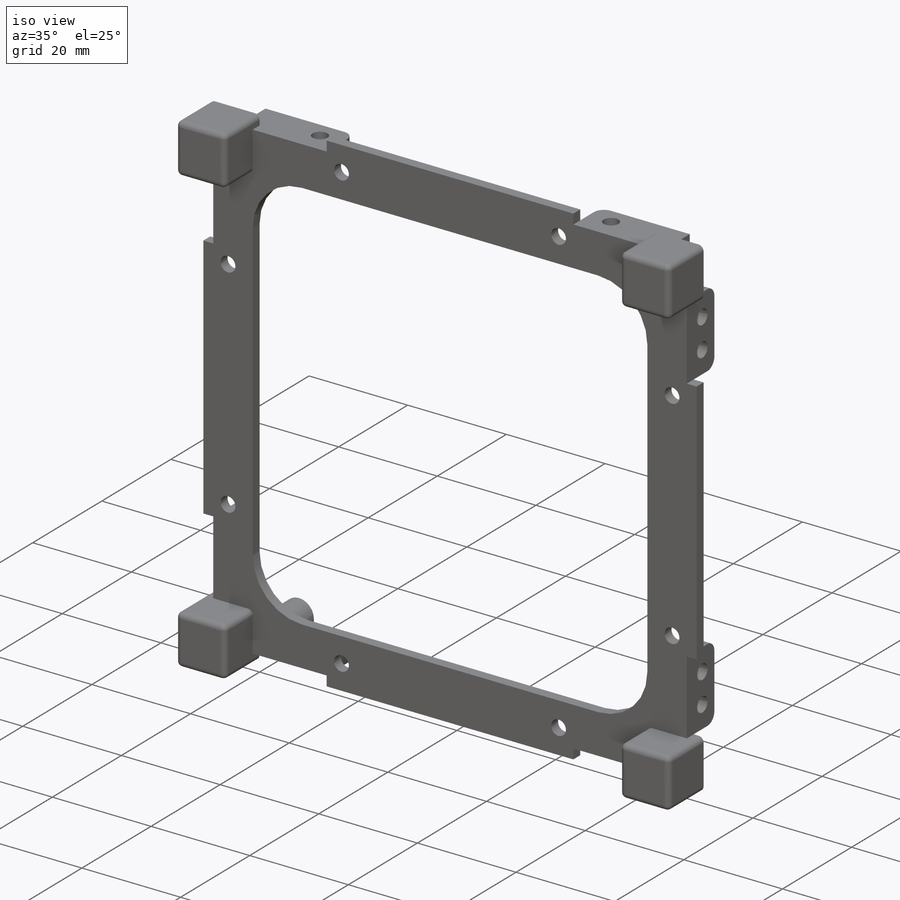
[diagram: iso view]
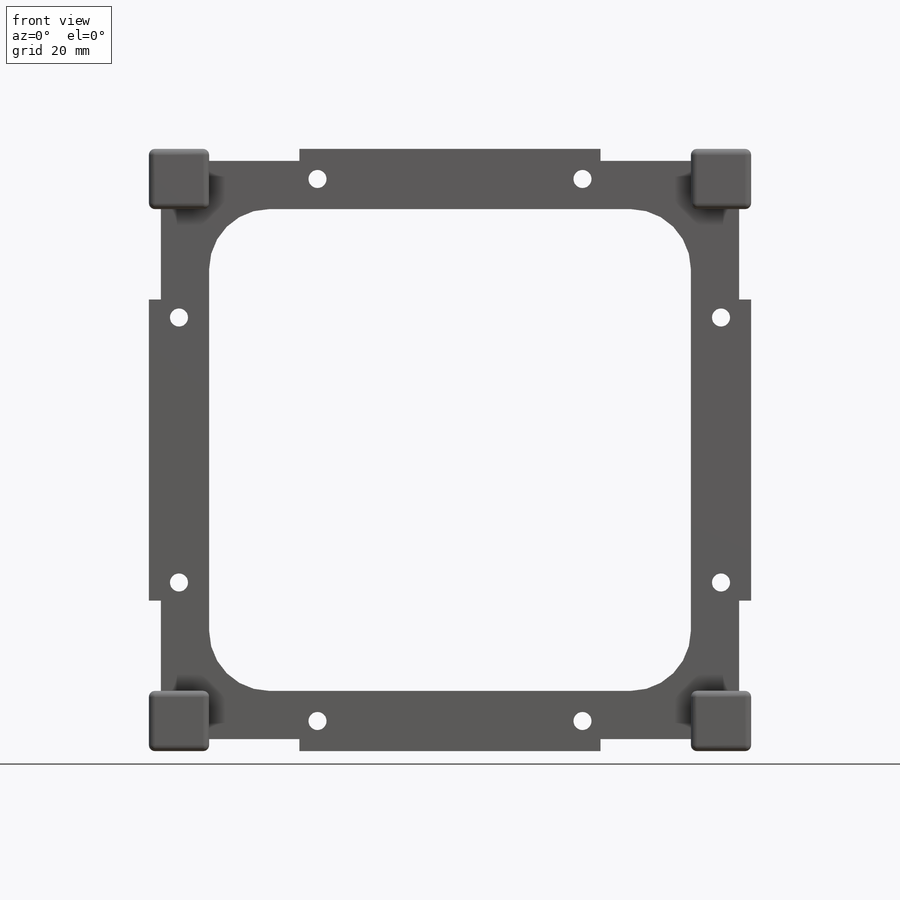
[diagram: front view]
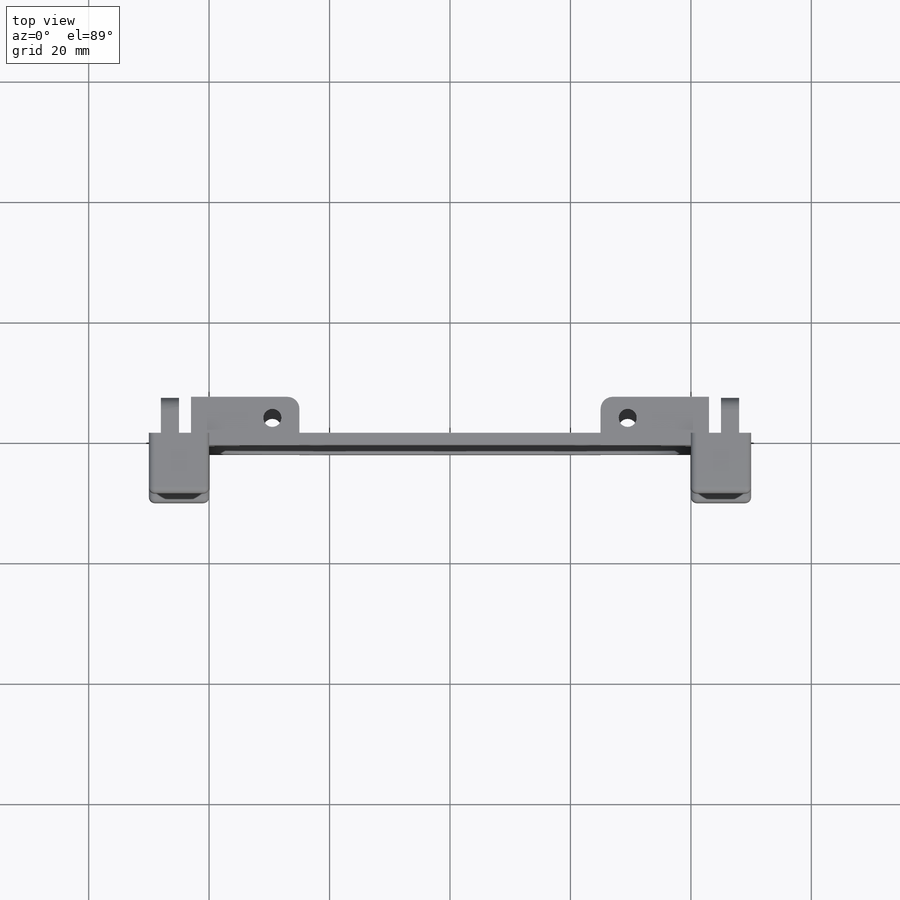
[diagram: top view]
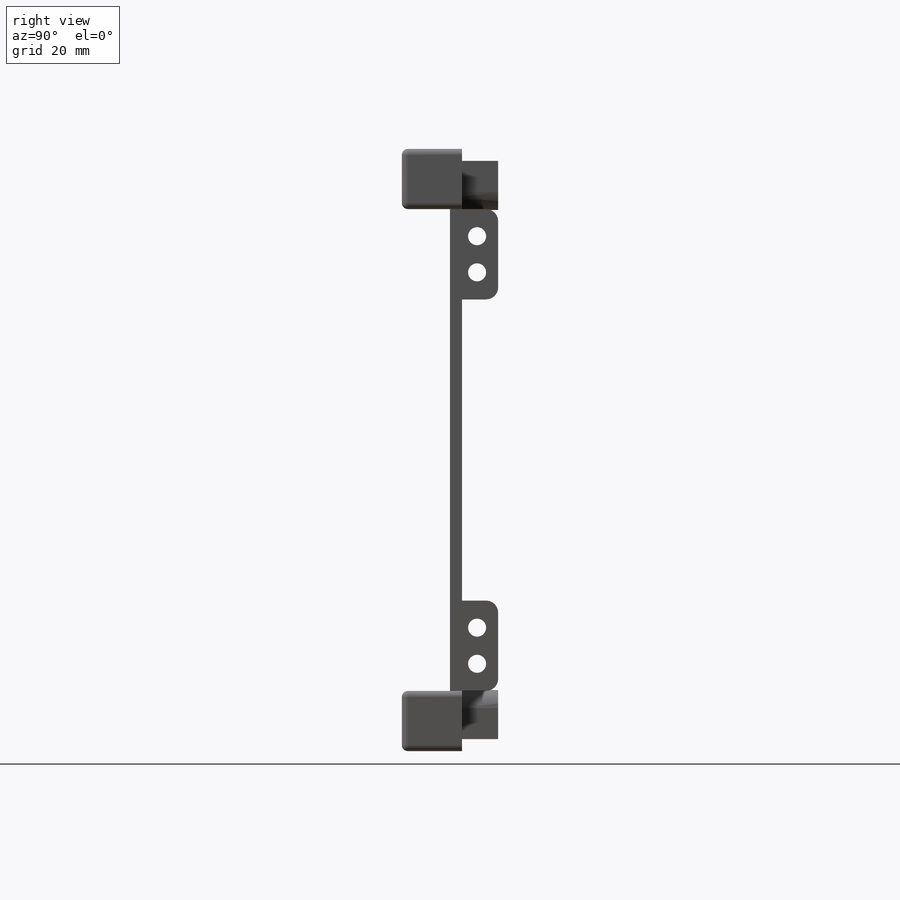
[diagram: right view]
SOLIDWORKS PART (.sldprt)
format: sldprt  version: not decoded by parser v0  size: 560,128 bytes
history: native  units: mm
features: sketch x5, extrude x3, fillet x2, cut_extrude x2, material x1 (+12 scaffold rows collapsed)
feature tree (25):
  scaffold x12  (default folders/planes/origin — collapsed)
  material  "6061-T4 (SS)"
  sketch  "Sketch1"  dims[c1.D2=1.0mm c1.D3=10.0mm c1.D9=3.0mm c1.D1=100.0mm c1.D4=10.0mm c1.D5=15.0mm c1.D6=2.0mm c1.D7=10.0mm c1.D8=100.0mm c2.D1=100.0mm c2.D10=28.0mm c2.D11=10.0mm c2.D12=28.0mm]
  extrude  "Boss-Extrude1"  Depth=2mm
  sketch  "Sketch2"  dims[D3=1.0mm D1=10.0mm D2=10.0mm]
  extrude  "Boss-Extrude3"  Depth=8mm
  fillet  "Fillet2"  Radius=1mm
  sketch  "Sketch6"  dims[c1.D3=3.0mm c1.D10=3.0mm c1.D11=1.0mm c1.D13=1.0mm c1.D14=3.0mm c1.D15=1.0mm c1.D18=3.0mm c1.D19=1.0mm c1.D1=95.9mm c1.D2=90.2mm c1.D4=85.1mm c1.D5=90.8mm c1.D6=8.9mm c1.D7=87.0mm c2.D6=90.8mm c2.D5=5.1mm c2.D7=8.9mm c2.D8=82.5mm c2.D9=5.1mm c2.D10=95.9mm c2.D12=3.0mm c2.D14=2.0mm c2.D16=3.0mm c2.D17=3.0mm c2.D20=3.0mm]
  extrude  "Boss-Extrude5"  Depth=6mm
  fillet  "Fillet3"  Radius=2mm
  sketch  "Sketch7"  dims[D1=3.0mm D2=3.5mm D3=4.5mm D4=6.0mm]
  cut_extrude  "Cut-Extrude1"  [1 undecoded]
  sketch  "Sketch8"  dims[D1=3.0mm D2=3.5mm D3=4.5mm D4=4.5mm]
  cut_extrude  "Cut-Extrude2"  [1 undecoded]
decode coverage: 10 of 12 modeling features carry decoded parameters
note: 2 parameter values undecoded
note: suppression state not decoded; provenance and decode notes live in map.json
